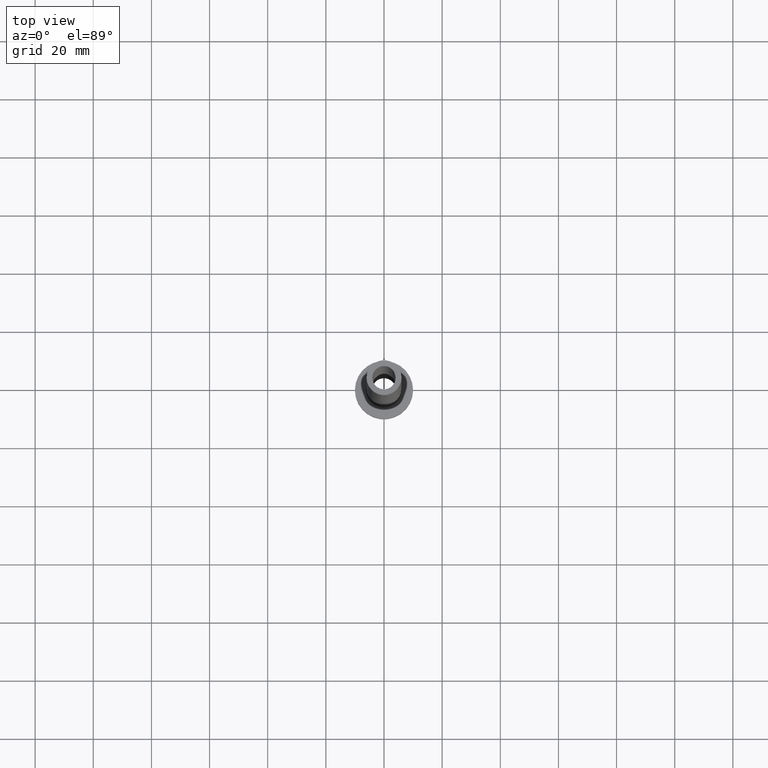
[diagram: clean part render]
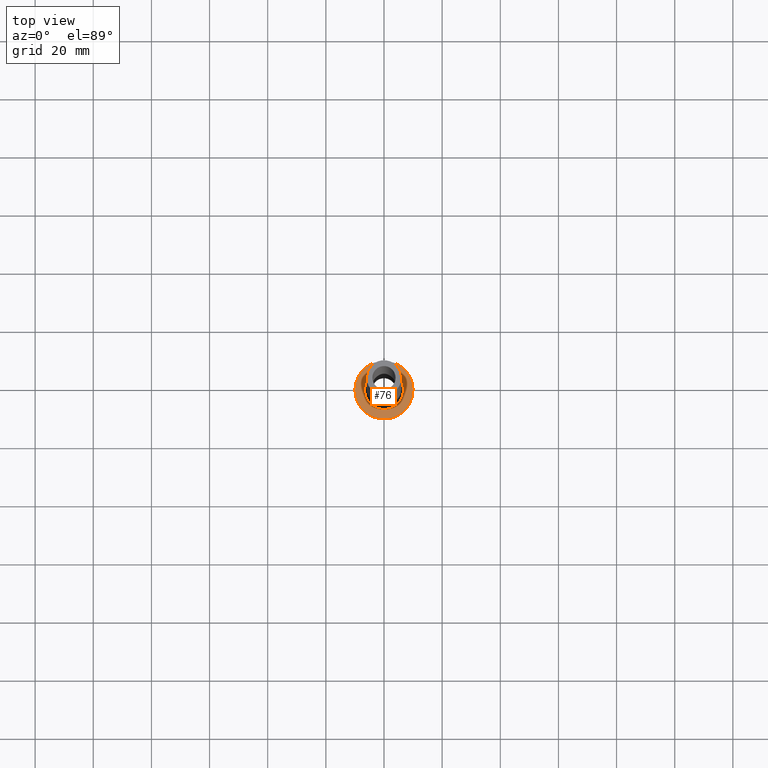
[diagram: same view with one face highlighted and labeled with its STEP entity id]
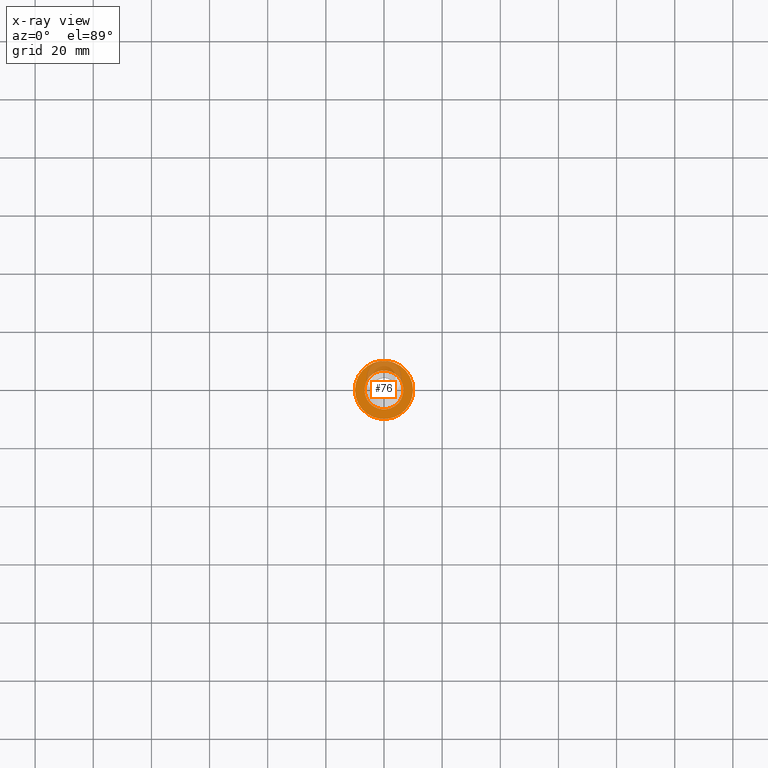
[diagram: x-ray of the same camera — body ghosted, the highlighted face saturated]
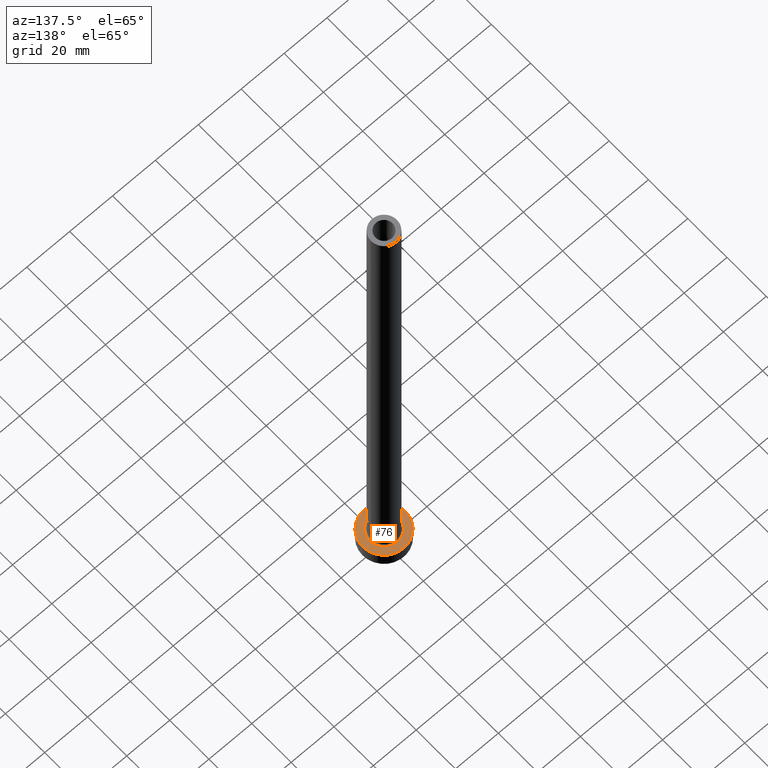
[diagram: same view with one face highlighted and labeled with its STEP entity id]
A machine part, top view. The second image highlights one B-rep face of the part: STEP entity #76.
The next image is the same camera in x-ray: the body ghosted, the highlighted face saturated — about 23% of this face is hidden behind the body in this view.
A second angle (auxiliary view) of the same face is appended — the face is thin or edge-on in the first view.
In plain terms, the highlighted planar face has unit normal (0, 0, 1).
Its self-contained STEP definition (entity closure, byte-faithful):
#3 = EDGE_LOOP ( 'NONE', ( #391, #61 ) ) ;
#10 = DIRECTION ( 'NONE',  ( 1.000000000000000000, 0.000000000000000000, 0.000000000000000000 ) ) ;
#25 = CIRCLE ( 'NONE', #137, 10.00000000000000000 ) ;
#47 = CIRCLE ( 'NONE', #169, 10.00000000000000000 ) ;
#48 = FACE_OUTER_BOUND ( 'NONE', #279, .T. ) ;
#52 = EDGE_CURVE ( 'NONE', #370, #316, #25, .T. ) ;
#61 = ORIENTED_EDGE ( 'NONE', *, *, #360, .T. ) ;
#75 = DIRECTION ( 'NONE',  ( 1.000000000000000000, 0.000000000000000000, 0.000000000000000000 ) ) ;
#76 = ADVANCED_FACE ( 'NONE', ( #365, #48 ), #338, .T. ) ;
#81 = CARTESIAN_POINT ( 'NONE',  ( 0.000000000000000000, 0.000000000000000000, 7.000000000000000000 ) ) ;
#91 = VERTEX_POINT ( 'NONE', #235 ) ;
#137 = AXIS2_PLACEMENT_3D ( 'NONE', #81, #225, #232 ) ;
#150 = VERTEX_POINT ( 'NONE', #349 ) ;
#152 = CARTESIAN_POINT ( 'NONE',  ( 0.000000000000000000, 0.000000000000000000, 7.000000000000000000 ) ) ;
#155 = ORIENTED_EDGE ( 'NONE', *, *, #413, .T. ) ;
#169 = AXIS2_PLACEMENT_3D ( 'NONE', #223, #337, #10 ) ;
#191 = DIRECTION ( 'NONE',  ( -0.000000000000000000, -0.000000000000000000, -1.000000000000000000 ) ) ;
#195 = CARTESIAN_POINT ( 'NONE',  ( 0.000000000000000000, 0.000000000000000000, 7.000000000000000000 ) ) ;
#205 = AXIS2_PLACEMENT_3D ( 'NONE', #195, #264, #75 ) ;
#223 = CARTESIAN_POINT ( 'NONE',  ( 0.000000000000000000, 0.000000000000000000, 7.000000000000000000 ) ) ;
#225 = DIRECTION ( 'NONE',  ( 0.000000000000000000, 0.000000000000000000, 1.000000000000000000 ) ) ;
#232 = DIRECTION ( 'NONE',  ( 1.000000000000000000, 0.000000000000000000, 0.000000000000000000 ) ) ;
#235 = CARTESIAN_POINT ( 'NONE',  ( -6.700000000000001066, 8.205133554287267548E-16, 7.000000000000006217 ) ) ;
#259 = DIRECTION ( 'NONE',  ( 1.000000000000000000, 0.000000000000000000, -0.000000000000000000 ) ) ;
#264 = DIRECTION ( 'NONE',  ( -0.000000000000000000, -0.000000000000000000, -1.000000000000000000 ) ) ;
#273 = AXIS2_PLACEMENT_3D ( 'NONE', #152, #302, #259 ) ;
#279 = EDGE_LOOP ( 'NONE', ( #313, #155 ) ) ;
#302 = DIRECTION ( 'NONE',  ( 0.000000000000000000, 0.000000000000000000, 1.000000000000000000 ) ) ;
#313 = ORIENTED_EDGE ( 'NONE', *, *, #52, .T. ) ;
#316 = VERTEX_POINT ( 'NONE', #397 ) ;
#337 = DIRECTION ( 'NONE',  ( 0.000000000000000000, 0.000000000000000000, 1.000000000000000000 ) ) ;
#338 = PLANE ( 'NONE',  #273 ) ;
#342 = CIRCLE ( 'NONE', #205, 6.700000000000001066 ) ;
#349 = CARTESIAN_POINT ( 'NONE',  ( 6.700000000000001066, 0.000000000000000000, 7.000000000000006217 ) ) ;
#360 = EDGE_CURVE ( 'NONE', #91, #150, #342, .T. ) ;
#365 = FACE_BOUND ( 'NONE', #3, .T. ) ;
#370 = VERTEX_POINT ( 'NONE', #400 ) ;
#391 = ORIENTED_EDGE ( 'NONE', *, *, #407, .T. ) ;
#397 = CARTESIAN_POINT ( 'NONE',  ( 10.00000000000000000, 1.224646799147353256E-15, 7.000000000000000000 ) ) ;
#400 = CARTESIAN_POINT ( 'NONE',  ( -10.00000000000000000, 0.000000000000000000, 7.000000000000000000 ) ) ;
#407 = EDGE_CURVE ( 'NONE', #150, #91, #415, .T. ) ;
#413 = EDGE_CURVE ( 'NONE', #316, #370, #47, .T. ) ;
#415 = CIRCLE ( 'NONE', #448, 6.700000000000001066 ) ;
#430 = CARTESIAN_POINT ( 'NONE',  ( 0.000000000000000000, 0.000000000000000000, 7.000000000000000000 ) ) ;
#436 = DIRECTION ( 'NONE',  ( 1.000000000000000000, 0.000000000000000000, 0.000000000000000000 ) ) ;
#448 = AXIS2_PLACEMENT_3D ( 'NONE', #430, #191, #436 ) ;